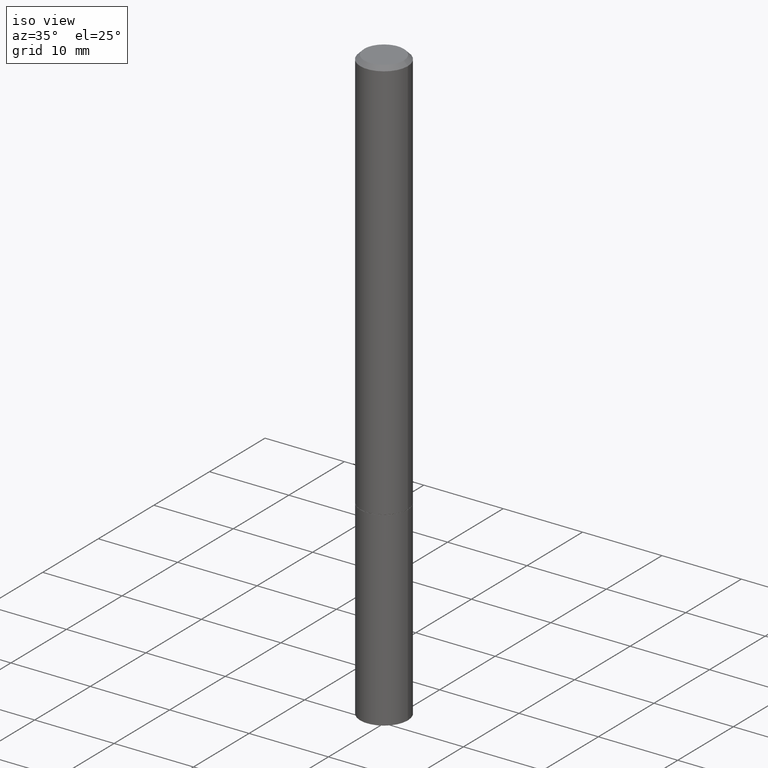
[diagram: clean part render]
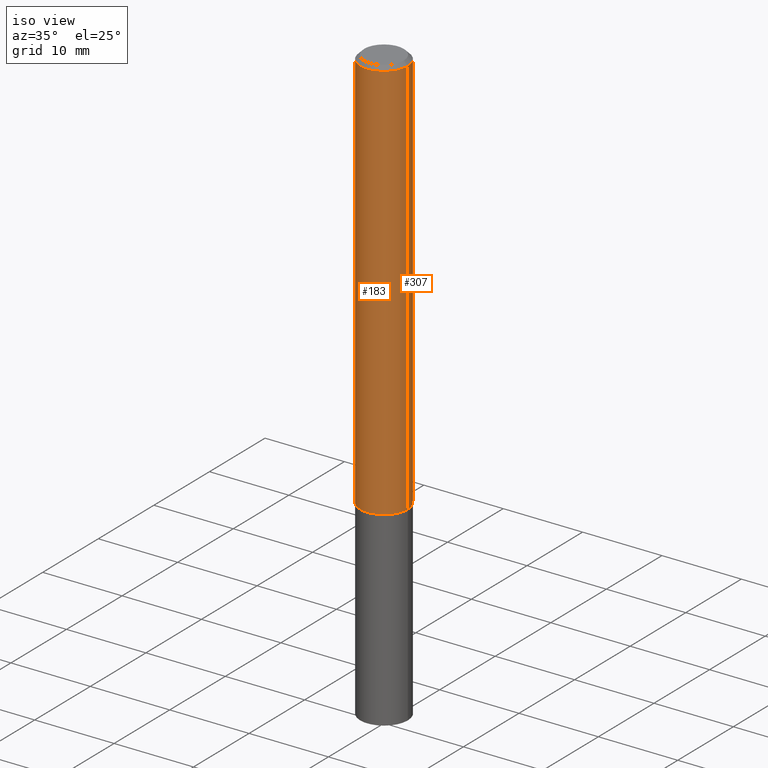
[diagram: same view with one multi-face feature highlighted, each face labeled with its STEP entity id]
A machine part, iso view. The highlighted faces form ONE feature: a constant-radius fillet chain: 2 tangent blend faces with common blend radius 2.9997 mm. The faces share edges in the B-rep.
Their STEP definitions:
[1] entity #183 (Cylinder):
#3 = DIRECTION ( 'NONE',  ( -2.445468806185136597E-29, 3.491481338843145583E-15, 1.000000000000000000 ) ) ;
#6 = DIRECTION ( 'NONE',  ( -2.445468806185136877E-29, 3.491481338843145188E-15, 1.000000000000000000 ) ) ;
#15 = CYLINDRICAL_SURFACE ( 'NONE', #112, 0.1180999999999998995 ) ;
#32 = ORIENTED_EDGE ( 'NONE', *, *, #268, .T. ) ;
#39 = CARTESIAN_POINT ( 'NONE',  ( 0.1180999999999998995, -8.246878922347473751E-16, 5.758764772214994835E-30 ) ) ;
#40 = EDGE_CURVE ( 'NONE', #336, #239, #199, .T. ) ;
#52 = VECTOR ( 'NONE', #173, 39.37007874015748143 ) ;
#62 = DIRECTION ( 'NONE',  ( 1.000000000000000000, -6.982962677686266711E-15, 0.000000000000000000 ) ) ;
#68 = DIRECTION ( 'NONE',  ( 1.000000000000000000, -6.982962677686266711E-15, 4.876176775795935232E-29 ) ) ;
#72 = EDGE_LOOP ( 'NONE', ( #189, #32, #204, #348 ) ) ;
#89 = EDGE_CURVE ( 'NONE', #359, #336, #168, .T. ) ;
#103 = CARTESIAN_POINT ( 'NONE',  ( 0.000000000000000000, 0.000000000000000000, 0.000000000000000000 ) ) ;
#112 = AXIS2_PLACEMENT_3D ( 'NONE', #103, #218, #68 ) ;
#128 = VECTOR ( 'NONE', #6, 39.37007874015748143 ) ;
#130 = EDGE_CURVE ( 'NONE', #181, #239, #295, .T. ) ;
#161 = DIRECTION ( 'NONE',  ( -2.445468806185136597E-29, 3.491481338843145583E-15, 1.000000000000000000 ) ) ;
#168 = LINE ( 'NONE', #291, #52 ) ;
#171 = CARTESIAN_POINT ( 'NONE',  ( 4.890937612370280165E-31, -6.982962677686301470E-17, -0.02000000000000003164 ) ) ;
#173 = DIRECTION ( 'NONE',  ( -2.445468806185136877E-29, 3.491481338843145188E-15, 1.000000000000000000 ) ) ;
#181 = VERTEX_POINT ( 'NONE', #275 ) ;
#183 = ADVANCED_FACE ( 'NONE', ( #358 ), #15, .T. ) ;
#189 = ORIENTED_EDGE ( 'NONE', *, *, #89, .F. ) ;
#191 = DIRECTION ( 'NONE',  ( 1.000000000000000000, -6.982962677686264344E-15, 0.000000000000000000 ) ) ;
#199 = CIRCLE ( 'NONE', #219, 0.1180999999999997746 ) ;
#204 = ORIENTED_EDGE ( 'NONE', *, *, #130, .T. ) ;
#218 = DIRECTION ( 'NONE',  ( -2.445468806185136597E-29, 3.491481338843145583E-15, 1.000000000000000000 ) ) ;
#219 = AXIS2_PLACEMENT_3D ( 'NONE', #171, #3, #62 ) ;
#225 = CARTESIAN_POINT ( 'NONE',  ( 4.907811347132949706E-29, -7.007053898924307126E-15, -2.006899999999999462 ) ) ;
#239 = VERTEX_POINT ( 'NONE', #279 ) ;
#260 = AXIS2_PLACEMENT_3D ( 'NONE', #225, #161, #191 ) ;
#268 = EDGE_CURVE ( 'NONE', #359, #181, #286, .T. ) ;
#275 = CARTESIAN_POINT ( 'NONE',  ( 0.1181000000000000105, -7.831741791159054599E-15, -2.006899999999999462 ) ) ;
#279 = CARTESIAN_POINT ( 'NONE',  ( 0.1180999999999997746, -8.800544403136792597E-16, -0.02000000000000003164 ) ) ;
#282 = CARTESIAN_POINT ( 'NONE',  ( -0.1181000000000000383, -2.699290791917902676E-15, -2.006899999999999462 ) ) ;
#286 = CIRCLE ( 'NONE', #260, 0.1181000000000000105 ) ;
#291 = CARTESIAN_POINT ( 'NONE',  ( -0.1180999999999998995, 8.391509709326776054E-16, -5.809262341591038879E-30 ) ) ;
#295 = LINE ( 'NONE', #39, #128 ) ;
#336 = VERTEX_POINT ( 'NONE', #338 ) ;
#338 = CARTESIAN_POINT ( 'NONE',  ( -0.1180999999999997746, 7.548582654578835839E-16, -0.02000000000000003164 ) ) ;
#348 = ORIENTED_EDGE ( 'NONE', *, *, #40, .F. ) ;
#358 = FACE_OUTER_BOUND ( 'NONE', #72, .T. ) ;
#359 = VERTEX_POINT ( 'NONE', #282 ) ;
[2] entity #307 (Cylinder):
#6 = DIRECTION ( 'NONE',  ( -2.445468806185136877E-29, 3.491481338843145188E-15, 1.000000000000000000 ) ) ;
#18 = FACE_OUTER_BOUND ( 'NONE', #91, .T. ) ;
#19 = ORIENTED_EDGE ( 'NONE', *, *, #25, .T. ) ;
#25 = EDGE_CURVE ( 'NONE', #181, #359, #352, .T. ) ;
#35 = AXIS2_PLACEMENT_3D ( 'NONE', #197, #64, #143 ) ;
#39 = CARTESIAN_POINT ( 'NONE',  ( 0.1180999999999998995, -8.246878922347473751E-16, 5.758764772214994835E-30 ) ) ;
#48 = DIRECTION ( 'NONE',  ( -2.445468806185136597E-29, 3.491481338843145583E-15, 1.000000000000000000 ) ) ;
#51 = DIRECTION ( 'NONE',  ( 1.000000000000000000, -6.982962677686266711E-15, 0.000000000000000000 ) ) ;
#52 = VECTOR ( 'NONE', #173, 39.37007874015748143 ) ;
#60 = ORIENTED_EDGE ( 'NONE', *, *, #89, .T. ) ;
#64 = DIRECTION ( 'NONE',  ( -2.445468806185136597E-29, 3.491481338843145583E-15, 1.000000000000000000 ) ) ;
#74 = CARTESIAN_POINT ( 'NONE',  ( 4.890937612370280165E-31, -6.982962677686301470E-17, -0.02000000000000003164 ) ) ;
#89 = EDGE_CURVE ( 'NONE', #359, #336, #168, .T. ) ;
#91 = EDGE_LOOP ( 'NONE', ( #19, #60, #316, #177 ) ) ;
#128 = VECTOR ( 'NONE', #6, 39.37007874015748143 ) ;
#130 = EDGE_CURVE ( 'NONE', #181, #239, #295, .T. ) ;
#143 = DIRECTION ( 'NONE',  ( 1.000000000000000000, -6.982962677686264344E-15, 0.000000000000000000 ) ) ;
#168 = LINE ( 'NONE', #291, #52 ) ;
#173 = DIRECTION ( 'NONE',  ( -2.445468806185136877E-29, 3.491481338843145188E-15, 1.000000000000000000 ) ) ;
#177 = ORIENTED_EDGE ( 'NONE', *, *, #130, .F. ) ;
#181 = VERTEX_POINT ( 'NONE', #275 ) ;
#193 = CYLINDRICAL_SURFACE ( 'NONE', #221, 0.1180999999999998995 ) ;
#197 = CARTESIAN_POINT ( 'NONE',  ( 4.907811347132949706E-29, -7.007053898924307126E-15, -2.006899999999999462 ) ) ;
#221 = AXIS2_PLACEMENT_3D ( 'NONE', #312, #257, #361 ) ;
#239 = VERTEX_POINT ( 'NONE', #279 ) ;
#257 = DIRECTION ( 'NONE',  ( -2.445468806185136597E-29, 3.491481338843145583E-15, 1.000000000000000000 ) ) ;
#275 = CARTESIAN_POINT ( 'NONE',  ( 0.1181000000000000105, -7.831741791159054599E-15, -2.006899999999999462 ) ) ;
#279 = CARTESIAN_POINT ( 'NONE',  ( 0.1180999999999997746, -8.800544403136792597E-16, -0.02000000000000003164 ) ) ;
#282 = CARTESIAN_POINT ( 'NONE',  ( -0.1181000000000000383, -2.699290791917902676E-15, -2.006899999999999462 ) ) ;
#291 = CARTESIAN_POINT ( 'NONE',  ( -0.1180999999999998995, 8.391509709326776054E-16, -5.809262341591038879E-30 ) ) ;
#295 = LINE ( 'NONE', #39, #128 ) ;
#305 = AXIS2_PLACEMENT_3D ( 'NONE', #74, #48, #51 ) ;
#307 = ADVANCED_FACE ( 'NONE', ( #18 ), #193, .T. ) ;
#312 = CARTESIAN_POINT ( 'NONE',  ( 0.000000000000000000, 0.000000000000000000, 0.000000000000000000 ) ) ;
#316 = ORIENTED_EDGE ( 'NONE', *, *, #363, .F. ) ;
#323 = CIRCLE ( 'NONE', #305, 0.1180999999999997746 ) ;
#336 = VERTEX_POINT ( 'NONE', #338 ) ;
#338 = CARTESIAN_POINT ( 'NONE',  ( -0.1180999999999997746, 7.548582654578835839E-16, -0.02000000000000003164 ) ) ;
#352 = CIRCLE ( 'NONE', #35, 0.1181000000000000105 ) ;
#359 = VERTEX_POINT ( 'NONE', #282 ) ;
#361 = DIRECTION ( 'NONE',  ( 1.000000000000000000, -6.982962677686266711E-15, 4.876176775795935232E-29 ) ) ;
#363 = EDGE_CURVE ( 'NONE', #239, #336, #323, .T. ) ;